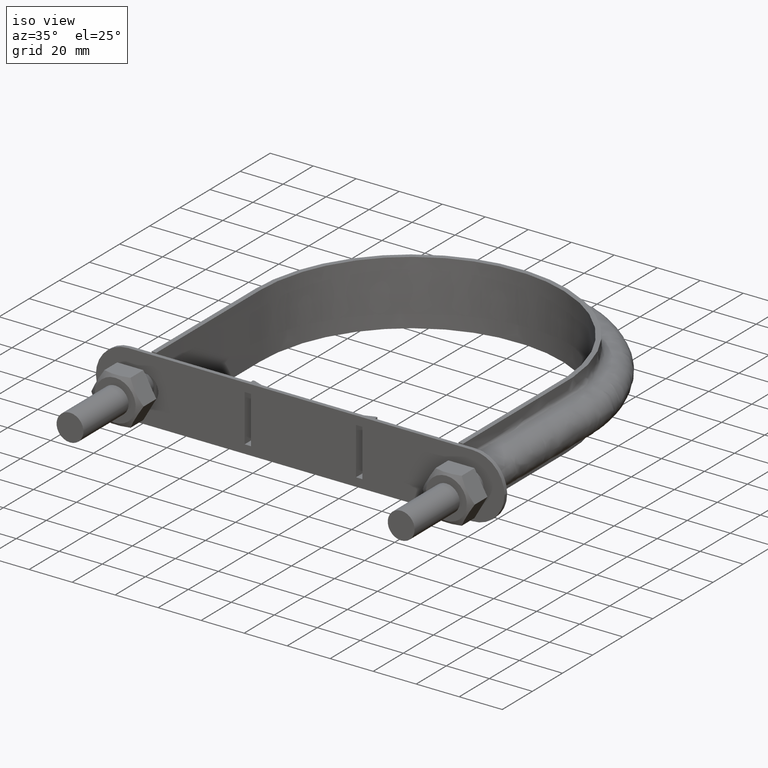
[diagram: clean part render]
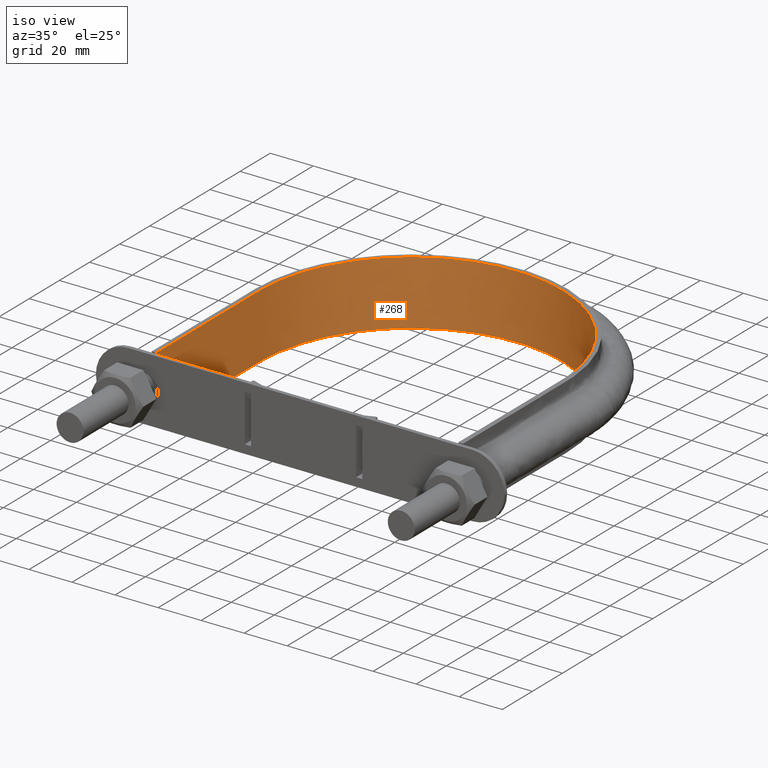
[diagram: same view with one face highlighted and labeled with its STEP entity id]
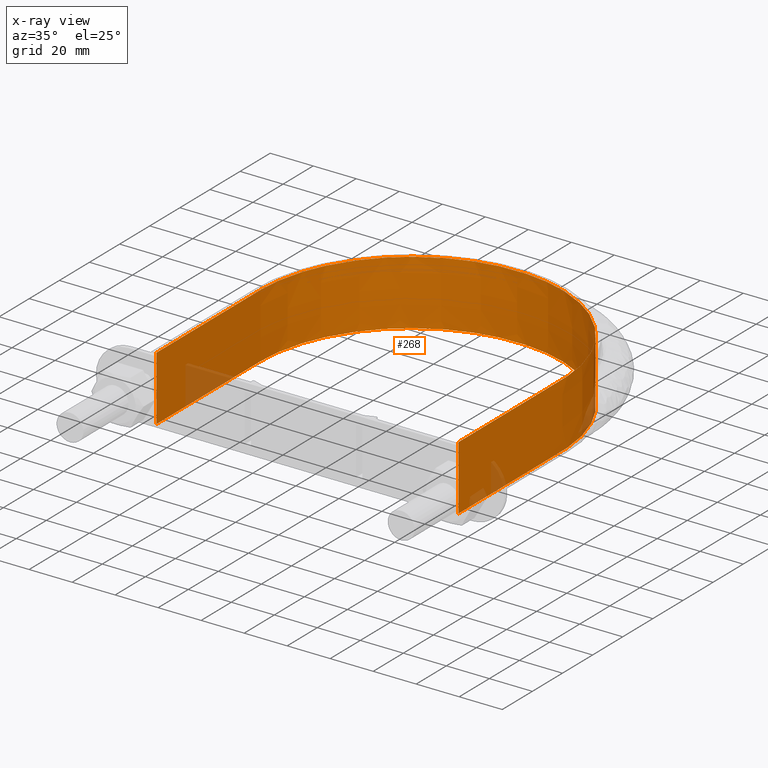
[diagram: x-ray of the same camera — body ghosted, the highlighted face saturated]
A machine part, iso view. The second image highlights one B-rep face of the part: STEP entity #268.
The next image is the same camera in x-ray: the body ghosted, the highlighted face saturated — about 5% of this face is hidden behind the body in this view.
In plain terms, the highlighted face is a SurfaceOfExtrusion surface.
Its self-contained STEP definition (entity closure, byte-faithful):
#268 = ADVANCED_FACE( '', ( #348 ), #349, .T. );
#348 = FACE_OUTER_BOUND( '', #535, .T. );
#349 = SURFACE_OF_LINEAR_EXTRUSION( '', #536, #537 );
#535 = EDGE_LOOP( '', ( #1573, #1574, #1575, #1576 ) );
#536 = B_SPLINE_CURVE_WITH_KNOTS( '', 3, ( #1577, #1578, #1579, #1580, #1581, #1582, #1583, #1584, #1585, #1586, #1587, #1588, #1589, #1590, #1591, #1592 ), .UNSPECIFIED., .F., .F., ( 4, 3, 1, 1, 1, 1, 1, 1, 3, 4 ), ( -9.00000000000000, -8.00000000000000, -7.00000000000000, -6.00000000000000, -5.00000000000000, -4.00000000000000, -3.00000000000000, -2.00000000000000, -1.00000000000000, 0.000000000000000 ), .UNSPECIFIED. );
#537 = VECTOR( '', #1593, 1000.00000000000 );
#1573 = ORIENTED_EDGE( '', *, *, #2146, .F. );
#1574 = ORIENTED_EDGE( '', *, *, #2141, .F. );
#1575 = ORIENTED_EDGE( '', *, *, #2147, .T. );
#1576 = ORIENTED_EDGE( '', *, *, #2148, .T. );
#1577 = CARTESIAN_POINT( '', ( -70.2500000000000, 47.7100000000000, -237.081057040700 ) );
#1578 = CARTESIAN_POINT( '', ( -70.2500000000000, 70.7266666666667, -237.081057040700 ) );
#1579 = CARTESIAN_POINT( '', ( -70.2500000000000, 93.7433333333333, -237.081057040700 ) );
#1580 = CARTESIAN_POINT( '', ( -70.2500000000000, 116.760000000000, -237.081057040700 ) );
#1581 = CARTESIAN_POINT( '', ( -70.2500000000000, 127.249418134732, -237.081057040700 ) );
#1582 = CARTESIAN_POINT( '', ( -65.4537147955432, 148.288971927909, -237.081057040700 ) );
#1583 = CARTESIAN_POINT( '', ( -45.2953760364684, 173.556467088273, -237.081057040700 ) );
#1584 = CARTESIAN_POINT( '', ( -16.1657325420394, 187.587129579273, -237.081057040700 ) );
#1585 = CARTESIAN_POINT( '', ( 16.1657325420395, 187.587129579273, -237.081057040700 ) );
#1586 = CARTESIAN_POINT( '', ( 45.2953760364684, 173.556467088273, -237.081057040700 ) );
#1587 = CARTESIAN_POINT( '', ( 65.4537147955432, 148.288971927909, -237.081057040700 ) );
#1588 = CARTESIAN_POINT( '', ( 70.2500000000000, 127.249418134732, -237.081057040700 ) );
#1589 = CARTESIAN_POINT( '', ( 70.2500000000000, 116.760000000000, -237.081057040700 ) );
#1590 = CARTESIAN_POINT( '', ( 70.2500000000000, 93.7433333333333, -237.081057040700 ) );
#1591 = CARTESIAN_POINT( '', ( 70.2500000000000, 70.7266666666667, -237.081057040700 ) );
#1592 = CARTESIAN_POINT( '', ( 70.2500000000000, 47.7100000000000, -237.081057040700 ) );
#1593 = DIRECTION( '', ( 0.000000000000000, 0.000000000000000, 1.00000000000000 ) );
#2141 = EDGE_CURVE( '', #2311, #2312, #2313, .T. );
#2146 = EDGE_CURVE( '', #2312, #2321, #2322, .T. );
#2147 = EDGE_CURVE( '', #2311, #2323, #2324, .T. );
#2148 = EDGE_CURVE( '', #2323, #2321, #2325, .T. );
#2311 = VERTEX_POINT( '', #2607 );
#2312 = VERTEX_POINT( '', #2608 );
#2313 = LINE( '', #2609, #2610 );
#2321 = VERTEX_POINT( '', #2660 );
#2322 = B_SPLINE_CURVE_WITH_KNOTS( '', 3, ( #2661, #2662, #2663, #2664, #2665, #2666, #2667, #2668, #2669, #2670, #2671, #2672, #2673, #2674, #2675, #2676 ), .UNSPECIFIED., .F., .F., ( 4, 3, 1, 1, 1, 1, 1, 1, 3, 4 ), ( -9.00000000000000, -8.00000000000000, -7.00000000000000, -6.00000000000000, -5.00000000000000, -4.00000000000000, -3.00000000000000, -2.00000000000000, -1.00000000000000, 0.000000000000000 ), .UNSPECIFIED. );
#2323 = VERTEX_POINT( '', #2677 );
#2324 = B_SPLINE_CURVE_WITH_KNOTS( '', 3, ( #2678, #2679, #2680, #2681, #2682, #2683, #2684, #2685, #2686, #2687, #2688, #2689, #2690, #2691, #2692, #2693 ), .UNSPECIFIED., .F., .F., ( 4, 3, 1, 1, 1, 1, 1, 1, 3, 4 ), ( -9.00000000000000, -8.00000000000000, -7.00000000000000, -6.00000000000000, -5.00000000000000, -4.00000000000000, -3.00000000000000, -2.00000000000000, -1.00000000000000, 0.000000000000000 ), .UNSPECIFIED. );
#2325 = LINE( '', #2694, #2695 );
#2607 = CARTESIAN_POINT( '', ( -70.2500000000000, 47.7100000000000, -15.0000000000000 ) );
#2608 = CARTESIAN_POINT( '', ( -70.2500000000000, 47.7100000000000, 15.0000000000000 ) );
#2609 = CARTESIAN_POINT( '', ( -70.2500000000000, 47.7100000000000, -237.081057040700 ) );
#2610 = VECTOR( '', #3325, 1000.00000000000 );
#2660 = CARTESIAN_POINT( '', ( 70.2500000000000, 47.7100000000000, 15.0000000000000 ) );
#2661 = CARTESIAN_POINT( '', ( -70.2500000000000, 47.7100000000000, 15.0000000000000 ) );
#2662 = CARTESIAN_POINT( '', ( -70.2500000000000, 70.7266666666667, 15.0000000000000 ) );
#2663 = CARTESIAN_POINT( '', ( -70.2500000000000, 93.7433333333333, 15.0000000000000 ) );
#2664 = CARTESIAN_POINT( '', ( -70.2500000000000, 116.760000000000, 15.0000000000000 ) );
#2665 = CARTESIAN_POINT( '', ( -70.2500000000000, 127.249418134732, 15.0000000000000 ) );
#2666 = CARTESIAN_POINT( '', ( -65.4537147955432, 148.288971927909, 15.0000000000000 ) );
#2667 = CARTESIAN_POINT( '', ( -45.2953760364684, 173.556467088273, 15.0000000000000 ) );
#2668 = CARTESIAN_POINT( '', ( -16.1657325420394, 187.587129579273, 15.0000000000000 ) );
#2669 = CARTESIAN_POINT( '', ( 16.1657325420395, 187.587129579273, 15.0000000000000 ) );
#2670 = CARTESIAN_POINT( '', ( 45.2953760364684, 173.556467088273, 15.0000000000000 ) );
#2671 = CARTESIAN_POINT( '', ( 65.4537147955432, 148.288971927909, 15.0000000000000 ) );
#2672 = CARTESIAN_POINT( '', ( 70.2500000000000, 127.249418134732, 15.0000000000000 ) );
#2673 = CARTESIAN_POINT( '', ( 70.2500000000000, 116.760000000000, 15.0000000000000 ) );
#2674 = CARTESIAN_POINT( '', ( 70.2500000000000, 93.7433333333333, 15.0000000000000 ) );
#2675 = CARTESIAN_POINT( '', ( 70.2500000000000, 70.7266666666667, 15.0000000000000 ) );
#2676 = CARTESIAN_POINT( '', ( 70.2500000000000, 47.7100000000000, 15.0000000000000 ) );
#2677 = CARTESIAN_POINT( '', ( 70.2500000000000, 47.7100000000000, -15.0000000000000 ) );
#2678 = CARTESIAN_POINT( '', ( -70.2500000000000, 47.7100000000000, -15.0000000000000 ) );
#2679 = CARTESIAN_POINT( '', ( -70.2500000000000, 70.7266666666667, -15.0000000000000 ) );
#2680 = CARTESIAN_POINT( '', ( -70.2500000000000, 93.7433333333333, -15.0000000000000 ) );
#2681 = CARTESIAN_POINT( '', ( -70.2500000000000, 116.760000000000, -15.0000000000000 ) );
#2682 = CARTESIAN_POINT( '', ( -70.2500000000000, 127.249418134732, -15.0000000000000 ) );
#2683 = CARTESIAN_POINT( '', ( -65.4537147955432, 148.288971927909, -15.0000000000000 ) );
#2684 = CARTESIAN_POINT( '', ( -45.2953760364684, 173.556467088273, -15.0000000000000 ) );
#2685 = CARTESIAN_POINT( '', ( -16.1657325420394, 187.587129579273, -15.0000000000000 ) );
#2686 = CARTESIAN_POINT( '', ( 16.1657325420395, 187.587129579273, -15.0000000000000 ) );
#2687 = CARTESIAN_POINT( '', ( 45.2953760364684, 173.556467088273, -15.0000000000000 ) );
#2688 = CARTESIAN_POINT( '', ( 65.4537147955432, 148.288971927909, -15.0000000000000 ) );
#2689 = CARTESIAN_POINT( '', ( 70.2500000000000, 127.249418134732, -15.0000000000000 ) );
#2690 = CARTESIAN_POINT( '', ( 70.2500000000000, 116.760000000000, -15.0000000000000 ) );
#2691 = CARTESIAN_POINT( '', ( 70.2500000000000, 93.7433333333333, -15.0000000000000 ) );
#2692 = CARTESIAN_POINT( '', ( 70.2500000000000, 70.7266666666667, -15.0000000000000 ) );
#2693 = CARTESIAN_POINT( '', ( 70.2500000000000, 47.7100000000000, -15.0000000000000 ) );
#2694 = CARTESIAN_POINT( '', ( 70.2500000000000, 47.7100000000000, -237.081057040700 ) );
#2695 = VECTOR( '', #3328, 1000.00000000000 );
#3325 = DIRECTION( '', ( 0.000000000000000, 0.000000000000000, 1.00000000000000 ) );
#3328 = DIRECTION( '', ( 0.000000000000000, 0.000000000000000, 1.00000000000000 ) );